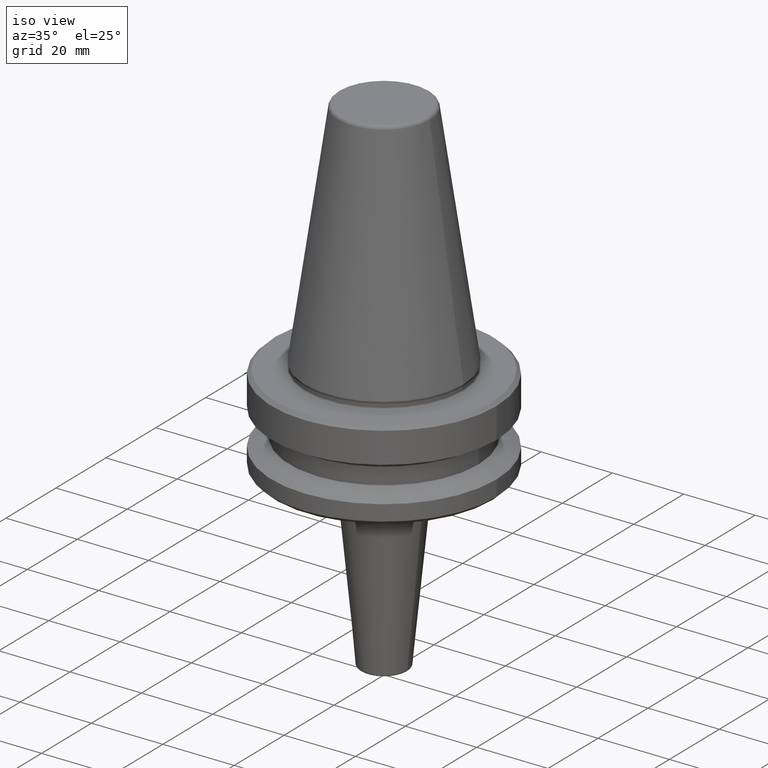
[diagram: clean part render]
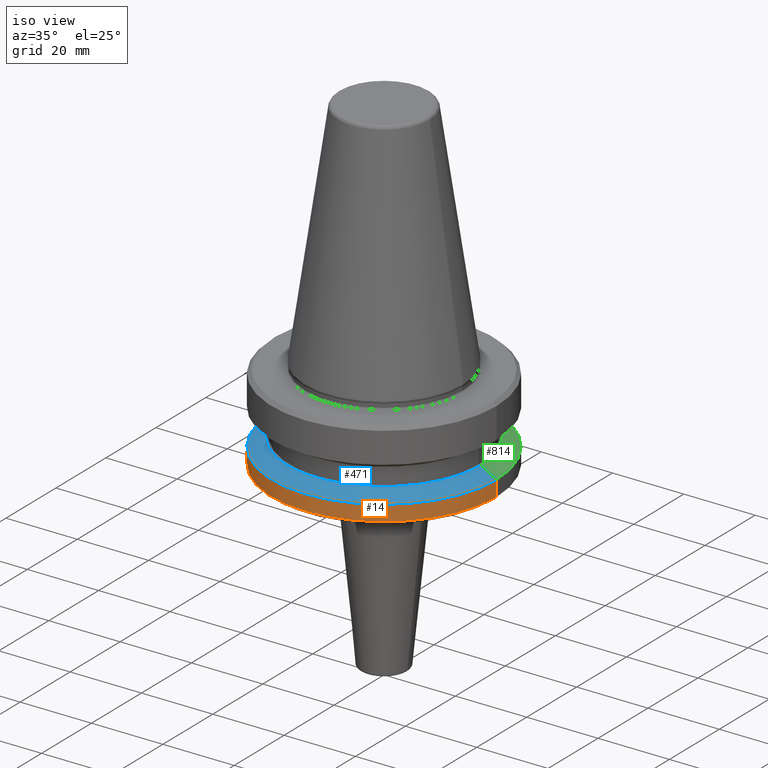
[diagram: same view with three faces highlighted in distinct colors, each labeled with its STEP entity id]
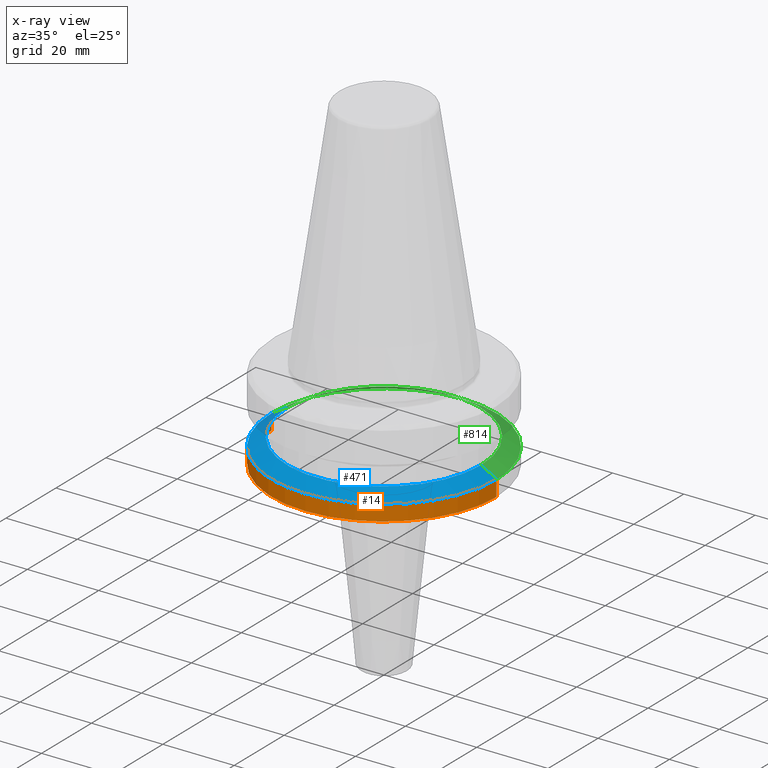
[diagram: x-ray of the same camera — body ghosted, the three highlighted faces saturated]
A machine part, iso view with three faces highlighted in distinct colors.
The next image is the same camera in x-ray (body ghosted, the three faces saturated) — at least one of them is partly hidden behind the body in this view.
Their STEP definitions:

[orange] entity #14 — the highlighted cylindrical surface (partial cylindrical patch) has radius 31.5 mm, axis along (-0, -0, 1).
#14 = ADVANCED_FACE ( 'NONE', ( #1035 ), #743, .T. ) ;
#72 = CARTESIAN_POINT ( 'NONE',  ( 0.0000000000000000000, 0.0000000000000000000, -91.40000000000037500 ) ) ;
#106 = ORIENTED_EDGE ( 'NONE', *, *, #196, .F. ) ;
#116 = DIRECTION ( 'NONE',  ( 1.000000000000000000, 0.0000000000000000000, 0.0000000000000000000 ) ) ;
#155 = CIRCLE ( 'NONE', #828, 31.50000000000008500 ) ;
#158 = AXIS2_PLACEMENT_3D ( 'NONE', #72, #389, #116 ) ;
#171 = DIRECTION ( 'NONE',  ( -0.0000000000000000000, -0.0000000000000000000, 1.000000000000000000 ) ) ;
#196 = EDGE_CURVE ( 'NONE', #935, #789, #380, .T. ) ;
#314 = EDGE_LOOP ( 'NONE', ( #106, #445, #973, #898 ) ) ;
#343 = EDGE_CURVE ( 'NONE', #935, #942, #882, .T. ) ;
#380 = LINE ( 'NONE', #593, #787 ) ;
#389 = DIRECTION ( 'NONE',  ( -0.0000000000000000000, -0.0000000000000000000, 1.000000000000000000 ) ) ;
#428 = CARTESIAN_POINT ( 'NONE',  ( 31.50000000000008500, 0.0000000000000000000, 6.357346922996331500 ) ) ;
#445 = ORIENTED_EDGE ( 'NONE', *, *, #343, .T. ) ;
#475 = VECTOR ( 'NONE', #604, 1000.000000000000000 ) ;
#484 = CARTESIAN_POINT ( 'NONE',  ( -31.50000000000008500, 3.857637417314172900E-015, -87.00014200631733300 ) ) ;
#500 = LINE ( 'NONE', #428, #475 ) ;
#515 = DIRECTION ( 'NONE',  ( 1.000000000000000000, 0.0000000000000000000, 0.0000000000000000000 ) ) ;
#593 = CARTESIAN_POINT ( 'NONE',  ( -31.50000000000008500, 3.857637417314172900E-015, 6.357346922996331500 ) ) ;
#604 = DIRECTION ( 'NONE',  ( -0.0000000000000000000, -0.0000000000000000000, 1.000000000000000000 ) ) ;
#628 = CARTESIAN_POINT ( 'NONE',  ( 31.50000000000008500, 0.0000000000000000000, -87.00014200631733300 ) ) ;
#657 = DIRECTION ( 'NONE',  ( -0.0000000000000000000, -0.0000000000000000000, 1.000000000000000000 ) ) ;
#668 = AXIS2_PLACEMENT_3D ( 'NONE', #784, #657, #515 ) ;
#674 = DIRECTION ( 'NONE',  ( 1.000000000000000000, 0.0000000000000000000, 0.0000000000000000000 ) ) ;
#677 = CARTESIAN_POINT ( 'NONE',  ( 0.0000000000000000000, 0.0000000000000000000, -87.00014200631733300 ) ) ;
#698 = VERTEX_POINT ( 'NONE', #628 ) ;
#743 = CYLINDRICAL_SURFACE ( 'NONE', #668, 31.50000000000008500 ) ;
#784 = CARTESIAN_POINT ( 'NONE',  ( 0.0000000000000000000, 0.0000000000000000000, 6.357346922996331500 ) ) ;
#787 = VECTOR ( 'NONE', #171, 1000.000000000000000 ) ;
#789 = VERTEX_POINT ( 'NONE', #484 ) ;
#797 = EDGE_CURVE ( 'NONE', #789, #698, #155, .T. ) ;
#828 = AXIS2_PLACEMENT_3D ( 'NONE', #677, #1024, #674 ) ;
#853 = EDGE_CURVE ( 'NONE', #942, #698, #500, .T. ) ;
#861 = CARTESIAN_POINT ( 'NONE',  ( 31.50000000000008500, 0.0000000000000000000, -91.40000000000037500 ) ) ;
#882 = CIRCLE ( 'NONE', #158, 31.50000000000008500 ) ;
#898 = ORIENTED_EDGE ( 'NONE', *, *, #797, .F. ) ;
#935 = VERTEX_POINT ( 'NONE', #957 ) ;
#942 = VERTEX_POINT ( 'NONE', #861 ) ;
#957 = CARTESIAN_POINT ( 'NONE',  ( -31.50000000000008500, 3.857637417314172900E-015, -91.40000000000037500 ) ) ;
#973 = ORIENTED_EDGE ( 'NONE', *, *, #853, .T. ) ;
#1024 = DIRECTION ( 'NONE',  ( -0.0000000000000000000, -0.0000000000000000000, 1.000000000000000000 ) ) ;
#1035 = FACE_OUTER_BOUND ( 'NONE', #314, .T. ) ;

[blue] entity #471 — the highlighted conical surface has half-angle 60 deg.
#16 = VECTOR ( 'NONE', #575, 1000.000000000000000 ) ;
#58 = LINE ( 'NONE', #731, #16 ) ;
#108 = CIRCLE ( 'NONE', #739, 27.16962701892256100 ) ;
#128 = EDGE_CURVE ( 'NONE', #172, #789, #58, .T. ) ;
#155 = CIRCLE ( 'NONE', #828, 31.50000000000008500 ) ;
#159 = CARTESIAN_POINT ( 'NONE',  ( -27.16962701892256100, 0.0000000000000000000, -84.50000000000068200 ) ) ;
#172 = VERTEX_POINT ( 'NONE', #159 ) ;
#182 = ORIENTED_EDGE ( 'NONE', *, *, #797, .T. ) ;
#204 = CONICAL_SURFACE ( 'NONE', #250, 31.50000000000008500, 1.047197551196587000 ) ;
#211 = EDGE_CURVE ( 'NONE', #172, #527, #108, .T. ) ;
#245 = EDGE_CURVE ( 'NONE', #527, #698, #285, .T. ) ;
#250 = AXIS2_PLACEMENT_3D ( 'NONE', #878, #945, #793 ) ;
#285 = LINE ( 'NONE', #329, #910 ) ;
#329 = CARTESIAN_POINT ( 'NONE',  ( 31.50000000000008500, 3.857637417314172900E-015, -87.00014200631733300 ) ) ;
#434 = ORIENTED_EDGE ( 'NONE', *, *, #211, .F. ) ;
#471 = ADVANCED_FACE ( 'NONE', ( #1009 ), #204, .T. ) ;
#472 = ORIENTED_EDGE ( 'NONE', *, *, #128, .T. ) ;
#484 = CARTESIAN_POINT ( 'NONE',  ( -31.50000000000008500, 3.857637417314172900E-015, -87.00014200631733300 ) ) ;
#514 = ORIENTED_EDGE ( 'NONE', *, *, #245, .F. ) ;
#527 = VERTEX_POINT ( 'NONE', #774 ) ;
#575 = DIRECTION ( 'NONE',  ( -0.8660254037844332700, 0.0000000000000000000, -0.5000000000000093300 ) ) ;
#628 = CARTESIAN_POINT ( 'NONE',  ( 31.50000000000008500, 0.0000000000000000000, -87.00014200631733300 ) ) ;
#674 = DIRECTION ( 'NONE',  ( 1.000000000000000000, 0.0000000000000000000, 0.0000000000000000000 ) ) ;
#677 = CARTESIAN_POINT ( 'NONE',  ( 0.0000000000000000000, 0.0000000000000000000, -87.00014200631733300 ) ) ;
#698 = VERTEX_POINT ( 'NONE', #628 ) ;
#731 = CARTESIAN_POINT ( 'NONE',  ( -31.50000000000008500, 0.0000000000000000000, -87.00014200631733300 ) ) ;
#739 = AXIS2_PLACEMENT_3D ( 'NONE', #1055, #959, #873 ) ;
#774 = CARTESIAN_POINT ( 'NONE',  ( 27.16962701892256100, 3.592478546794633900E-015, -84.50000000000068200 ) ) ;
#789 = VERTEX_POINT ( 'NONE', #484 ) ;
#793 = DIRECTION ( 'NONE',  ( -1.000000000000000000, 0.0000000000000000000, 0.0000000000000000000 ) ) ;
#797 = EDGE_CURVE ( 'NONE', #789, #698, #155, .T. ) ;
#828 = AXIS2_PLACEMENT_3D ( 'NONE', #677, #1024, #674 ) ;
#873 = DIRECTION ( 'NONE',  ( 1.000000000000000000, 0.0000000000000000000, 0.0000000000000000000 ) ) ;
#878 = CARTESIAN_POINT ( 'NONE',  ( 0.0000000000000000000, 0.0000000000000000000, -87.00014200631733300 ) ) ;
#910 = VECTOR ( 'NONE', #984, 1000.000000000000000 ) ;
#945 = DIRECTION ( 'NONE',  ( 0.0000000000000000000, 0.0000000000000000000, -1.000000000000000000 ) ) ;
#959 = DIRECTION ( 'NONE',  ( -0.0000000000000000000, -0.0000000000000000000, 1.000000000000000000 ) ) ;
#984 = DIRECTION ( 'NONE',  ( 0.8660254037844332700, 1.060575238724900300E-016, -0.5000000000000093300 ) ) ;
#997 = EDGE_LOOP ( 'NONE', ( #514, #434, #472, #182 ) ) ;
#1009 = FACE_OUTER_BOUND ( 'NONE', #997, .T. ) ;
#1024 = DIRECTION ( 'NONE',  ( -0.0000000000000000000, -0.0000000000000000000, 1.000000000000000000 ) ) ;
#1055 = CARTESIAN_POINT ( 'NONE',  ( 0.0000000000000000000, 0.0000000000000000000, -84.50000000000068200 ) ) ;

[green] entity #814 — the highlighted conical surface has half-angle 60 deg.
#16 = VECTOR ( 'NONE', #575, 1000.000000000000000 ) ;
#58 = LINE ( 'NONE', #731, #16 ) ;
#128 = EDGE_CURVE ( 'NONE', #172, #789, #58, .T. ) ;
#159 = CARTESIAN_POINT ( 'NONE',  ( -27.16962701892256100, 0.0000000000000000000, -84.50000000000068200 ) ) ;
#172 = VERTEX_POINT ( 'NONE', #159 ) ;
#193 = ORIENTED_EDGE ( 'NONE', *, *, #128, .F. ) ;
#207 = DIRECTION ( 'NONE',  ( 1.000000000000000000, 0.0000000000000000000, 0.0000000000000000000 ) ) ;
#245 = EDGE_CURVE ( 'NONE', #527, #698, #285, .T. ) ;
#255 = CIRCLE ( 'NONE', #442, 27.16962701892256100 ) ;
#256 = DIRECTION ( 'NONE',  ( -0.0000000000000000000, -0.0000000000000000000, 1.000000000000000000 ) ) ;
#285 = LINE ( 'NONE', #329, #910 ) ;
#329 = CARTESIAN_POINT ( 'NONE',  ( 31.50000000000008500, 3.857637417314172900E-015, -87.00014200631733300 ) ) ;
#357 = EDGE_CURVE ( 'NONE', #527, #172, #255, .T. ) ;
#395 = CIRCLE ( 'NONE', #1053, 31.50000000000008500 ) ;
#433 = DIRECTION ( 'NONE',  ( 0.0000000000000000000, 0.0000000000000000000, -1.000000000000000000 ) ) ;
#442 = AXIS2_PLACEMENT_3D ( 'NONE', #622, #256, #582 ) ;
#484 = CARTESIAN_POINT ( 'NONE',  ( -31.50000000000008500, 3.857637417314172900E-015, -87.00014200631733300 ) ) ;
#518 = DIRECTION ( 'NONE',  ( -1.000000000000000000, 0.0000000000000000000, 0.0000000000000000000 ) ) ;
#524 = CONICAL_SURFACE ( 'NONE', #889, 31.50000000000008500, 1.047197551196587000 ) ;
#526 = EDGE_LOOP ( 'NONE', ( #1018, #721, #813, #193 ) ) ;
#527 = VERTEX_POINT ( 'NONE', #774 ) ;
#575 = DIRECTION ( 'NONE',  ( -0.8660254037844332700, 0.0000000000000000000, -0.5000000000000093300 ) ) ;
#579 = EDGE_CURVE ( 'NONE', #698, #789, #395, .T. ) ;
#581 = FACE_OUTER_BOUND ( 'NONE', #526, .T. ) ;
#582 = DIRECTION ( 'NONE',  ( 1.000000000000000000, 0.0000000000000000000, 0.0000000000000000000 ) ) ;
#622 = CARTESIAN_POINT ( 'NONE',  ( 0.0000000000000000000, 0.0000000000000000000, -84.50000000000068200 ) ) ;
#628 = CARTESIAN_POINT ( 'NONE',  ( 31.50000000000008500, 0.0000000000000000000, -87.00014200631733300 ) ) ;
#639 = CARTESIAN_POINT ( 'NONE',  ( 0.0000000000000000000, 0.0000000000000000000, -87.00014200631733300 ) ) ;
#698 = VERTEX_POINT ( 'NONE', #628 ) ;
#721 = ORIENTED_EDGE ( 'NONE', *, *, #245, .T. ) ;
#731 = CARTESIAN_POINT ( 'NONE',  ( -31.50000000000008500, 0.0000000000000000000, -87.00014200631733300 ) ) ;
#774 = CARTESIAN_POINT ( 'NONE',  ( 27.16962701892256100, 3.592478546794633900E-015, -84.50000000000068200 ) ) ;
#789 = VERTEX_POINT ( 'NONE', #484 ) ;
#813 = ORIENTED_EDGE ( 'NONE', *, *, #579, .T. ) ;
#814 = ADVANCED_FACE ( 'NONE', ( #581 ), #524, .T. ) ;
#871 = DIRECTION ( 'NONE',  ( -0.0000000000000000000, -0.0000000000000000000, 1.000000000000000000 ) ) ;
#889 = AXIS2_PLACEMENT_3D ( 'NONE', #1017, #433, #518 ) ;
#910 = VECTOR ( 'NONE', #984, 1000.000000000000000 ) ;
#984 = DIRECTION ( 'NONE',  ( 0.8660254037844332700, 1.060575238724900300E-016, -0.5000000000000093300 ) ) ;
#1017 = CARTESIAN_POINT ( 'NONE',  ( 0.0000000000000000000, 0.0000000000000000000, -87.00014200631733300 ) ) ;
#1018 = ORIENTED_EDGE ( 'NONE', *, *, #357, .F. ) ;
#1053 = AXIS2_PLACEMENT_3D ( 'NONE', #639, #871, #207 ) ;